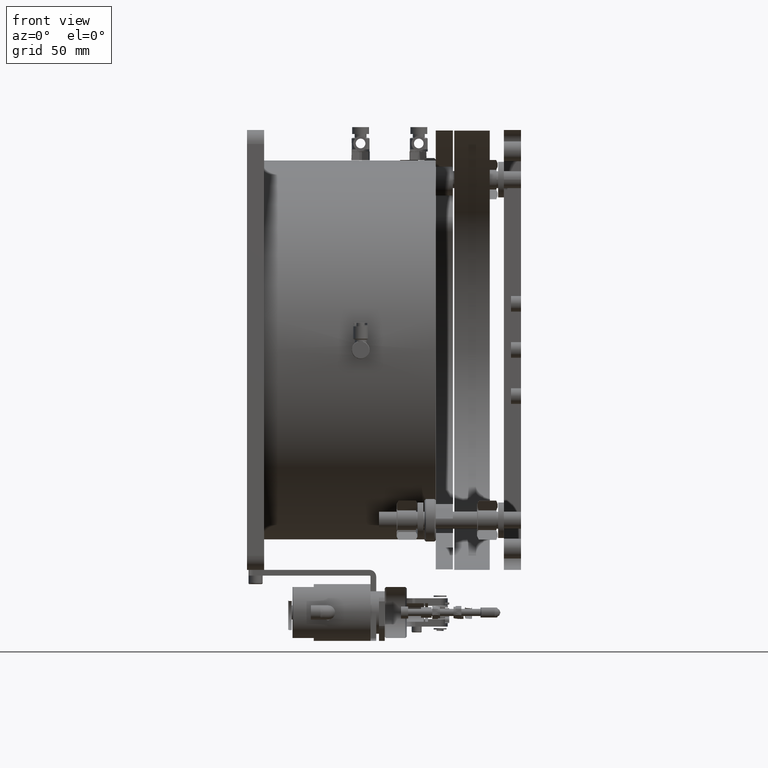
[diagram: clean part render]
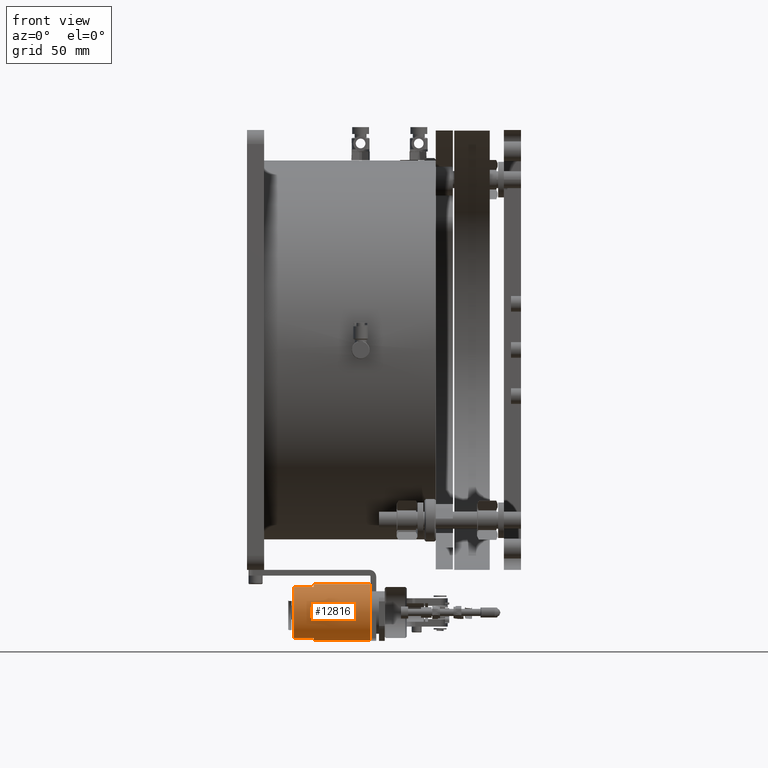
[diagram: same view with one face highlighted and labeled with its STEP entity id]
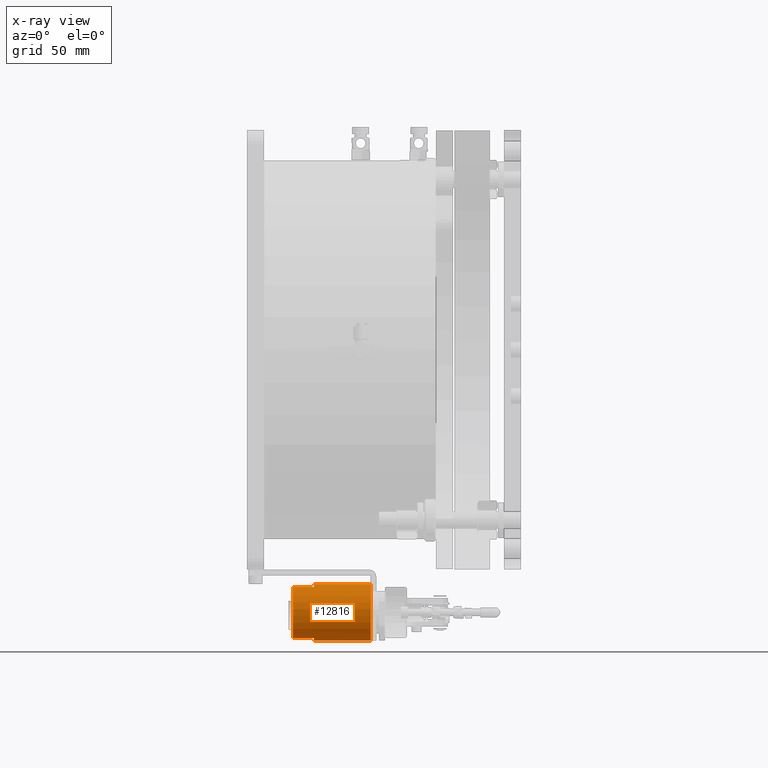
[diagram: x-ray of the same camera — body ghosted, the highlighted face saturated]
A machine part, front view. The second image highlights one B-rep face of the part: STEP entity #12816.
The next image is the same camera in x-ray: the body ghosted, the highlighted face saturated — about 2% of this face is hidden behind the body in this view.
In plain terms, the highlighted cylindrical surface (bore or boss wall) has radius 20 mm, axis along (1, -0, 0).
Its self-contained STEP definition (entity closure, byte-faithful):
#253 = CARTESIAN_POINT ( 'NONE',  ( 455.3911129078834392, -14.33325410461196014, 420.8144035397726839 ) ) ;
#330 = CARTESIAN_POINT ( 'NONE',  ( 440.4301042306548766, -53.95488104123893436, 424.1556735825731721 ) ) ;
#372 = EDGE_LOOP ( 'NONE', ( #5835, #21788 ) ) ;
#475 = CARTESIAN_POINT ( 'NONE',  ( 438.8624768670916296, -53.92913246582638465, 424.2835986024670092 ) ) ;
#478 = FACE_BOUND ( 'NONE', #4927, .T. ) ;
#615 = CARTESIAN_POINT ( 'NONE',  ( 443.2894709985730515, -54.31217394382193220, 421.3248581650288997 ) ) ;
#688 = B_SPLINE_CURVE_WITH_KNOTS ( 'NONE', 3,
 ( #26593, #6829, #2415, #4035, #11096, #13019, #28810, #1820, #13172, #22018, #15675, #13604, #22452, #10805, #27032, #20103, #1966, #13458, #10947, #19661, #9036, #18038 ),
 .UNSPECIFIED., .F., .F.,
 ( 4, 2, 2, 2, 2, 2, 2, 2, 2, 2, 4 ),
 ( 0.000000000000000000, 0.1249999999999922284, 0.2499999999999844569, 0.3124999999999805711, 0.3749999999999766853, 0.4999999999999739098, 0.5624999999999790168, 0.6249999999999841238, 0.7499999999999894529, 0.8749999999999947820, 1.000000000000000000 ),
 .UNSPECIFIED. ) ;
#808 = CARTESIAN_POINT ( 'NONE',  ( 422.3670067632326663, -14.63908213473006370, 423.7737086033929472 ) ) ;
#1052 = ORIENTED_EDGE ( 'NONE', *, *, #10877, .T. ) ;
#1062 = DIRECTION ( 'NONE',  ( 2.775557561562888984E-15, 0.000000000000000000, -1.000000000000000000 ) ) ;
#1096 = CARTESIAN_POINT ( 'NONE',  ( 421.9343673388141269, -14.58739845031549542, 423.4840502780008933 ) ) ;
#1430 = LINE ( 'NONE', #26187, #17414 ) ;
#1434 = CARTESIAN_POINT ( 'NONE',  ( 441.3975625812839212, -54.03029852921539344, 416.8123973540816110 ) ) ;
#1557 = VECTOR ( 'NONE', #23351, 1000.000000000000000 ) ;
#1604 = CARTESIAN_POINT ( 'NONE',  ( 450.3509481309974944, -14.71585787857609873, 416.3846060713249813 ) ) ;
#1668 = DIRECTION ( 'NONE',  ( 2.775557561562888984E-15, 0.000000000000000000, -1.000000000000000000 ) ) ;
#1820 = CARTESIAN_POINT ( 'NONE',  ( 422.3855758570774128, -14.63630028511637349, 416.8118920820127755 ) ) ;
#1966 = CARTESIAN_POINT ( 'NONE',  ( 426.8444667430294999, -14.58783265469587320, 417.0800874761501973 ) ) ;
#2005 = CARTESIAN_POINT ( 'NONE',  ( 438.1017263632086838, -53.97004156265929709, 416.4877248907823741 ) ) ;
#2015 = CARTESIAN_POINT ( 'NONE',  ( 451.9191749813496699, -14.73739194429638211, 424.2836779703733328 ) ) ;
#2164 = CARTESIAN_POINT ( 'NONE',  ( 447.4927345938052099, -14.35432990308941292, 421.3247542449874459 ) ) ;
#2175 = VERTEX_POINT ( 'NONE', #22513 ) ;
#2281 = EDGE_CURVE ( 'NONE', #6891, #13982, #14311, .T. ) ;
#2415 = CARTESIAN_POINT ( 'NONE',  ( 420.4933118859208321, -14.35443992623689802, 419.2401788119665298 ) ) ;
#2631 = ORIENTED_EDGE ( 'NONE', *, *, #16024, .T. ) ;
#2719 = CARTESIAN_POINT ( 'NONE',  ( 427.5946126244185734, -14.48067864694257878, 422.7367146838265057 ) ) ;
#2830 = FACE_BOUND ( 'NONE', #5687, .T. ) ;
#3102 = ORIENTED_EDGE ( 'NONE', *, *, #21226, .T. ) ;
#3122 = FACE_OUTER_BOUND ( 'NONE', #27005, .T. ) ;
#3170 = CARTESIAN_POINT ( 'NONE',  ( 414.8911129078834961, -34.33325410461196725, 420.2834046956845668 ) ) ;
#3276 = CARTESIAN_POINT ( 'NONE',  ( 428.3911129078834392, -14.33325410461196192, 420.2834046956846237 ) ) ;
#3431 = VERTEX_POINT ( 'NONE', #10551 ) ;
#3445 = EDGE_CURVE ( 'NONE', #13659, #3431, #12537, .T. ) ;
#3482 = LINE ( 'NONE', #26467, #14264 ) ;
#3569 = CIRCLE ( 'NONE', #13899, 20.00000000000001776 ) ;
#3828 = CARTESIAN_POINT ( 'NONE',  ( 455.2891568429306517, -14.35440174271069047, 419.2403420723446743 ) ) ;
#3900 = DIRECTION ( 'NONE',  ( 2.775557561562888984E-15, 0.000000000000000000, -1.000000000000000000 ) ) ;
#3986 = ORIENTED_EDGE ( 'NONE', *, *, #23240, .T. ) ;
#4035 = CARTESIAN_POINT ( 'NONE',  ( 420.8997902480427911, -14.42975204151246160, 418.2605498213314377 ) ) ;
#4231 = CIRCLE ( 'NONE', #24473, 20.00000000000001776 ) ;
#4363 = CARTESIAN_POINT ( 'NONE',  ( 436.9378166182297036, -54.07866831845382194, 417.0800440148398707 ) ) ;
#4399 = CARTESIAN_POINT ( 'NONE',  ( 455.3911129078834961, -14.33325410461196192, 419.7521461698111693 ) ) ;
#4525 = CARTESIAN_POINT ( 'NONE',  ( 447.3911129078835529, -14.33325410461196014, 420.8137580037172825 ) ) ;
#4672 = CARTESIAN_POINT ( 'NONE',  ( 454.0322037791416392, -14.56102844548665409, 423.2991903370454452 ) ) ;
#4927 = EDGE_LOOP ( 'NONE', ( #16671, #7202 ) ) ;
#5032 = CARTESIAN_POINT ( 'NONE',  ( 437.3856727848062746, -54.03020006565568423, 423.7549568070201076 ) ) ;
#5072 = CARTESIAN_POINT ( 'NONE',  ( 426.5071577041269961, -14.62386407084872353, 423.6812409005616473 ) ) ;
#5167 = B_SPLINE_CURVE_WITH_KNOTS ( 'NONE', 3,
 ( #13796, #253, #11590, #24720, #8791, #4672, #13359, #20303, #11441, #20586, #20443, #9229, #2015, #7164, #18229, #18375, #24570, #25154, #22502, #7023, #17788, #2164, #4525, #6879 ),
 .UNSPECIFIED., .F., .F.,
 ( 4, 2, 2, 2, 2, 2, 2, 2, 2, 2, 2, 4 ),
 ( 0.000000000000000000, 0.1250000000000043576, 0.2500000000000087153, 0.3125000000000154321, 0.3437500000000133227, 0.3750000000000111577, 0.5000000000000046629, 0.5625000000000015543, 0.6249999999999982236, 0.7499999999999987788, 0.8749999999999994449, 1.000000000000000000 ),
 .UNSPECIFIED. ) ;
#5177 = CIRCLE ( 'NONE', #21662, 20.00000000000001776 ) ;
#5326 = CARTESIAN_POINT ( 'NONE',  ( 441.4146219466155117, -54.02736371921497494, 423.7740555136571743 ) ) ;
#5365 = LINE ( 'NONE', #14352, #1557 ) ;
#5402 = EDGE_CURVE ( 'NONE', #17835, #21652, #3569, .T. ) ;
#5687 = EDGE_LOOP ( 'NONE', ( #1052, #13137 ) ) ;
#5835 = ORIENTED_EDGE ( 'NONE', *, *, #6869, .T. ) ;
#5951 = CARTESIAN_POINT ( 'NONE',  ( 429.3911129078833255, -25.61545621753060686, 438.2834046956846805 ) ) ;
#6027 = CARTESIAN_POINT ( 'NONE',  ( 455.3911129078834392, -14.33325410461196192, 420.2834046956846805 ) ) ;
#6091 = CARTESIAN_POINT ( 'NONE',  ( 469.3911129078834392, -34.33325410461196725, 420.2834046956847942 ) ) ;
#6136 = CARTESIAN_POINT ( 'NONE',  ( 441.8298865982197867, -54.07902027132890765, 417.1012404133761038 ) ) ;
#6273 = CARTESIAN_POINT ( 'NONE',  ( 440.4314223845797187, -53.95064949647876062, 416.3845901053058469 ) ) ;
#6420 = CARTESIAN_POINT ( 'NONE',  ( 439.1245869244698952, -53.92918587662392582, 416.2834724473347023 ) ) ;
#6829 = CARTESIAN_POINT ( 'NONE',  ( 420.3911129078835529, -14.33325410461196547, 419.7525677682430114 ) ) ;
#6869 = EDGE_CURVE ( 'NONE', #12960, #11070, #7331, .T. ) ;
#6879 = CARTESIAN_POINT ( 'NONE',  ( 447.3911129078834961, -14.33325410461196192, 420.2834046956846805 ) ) ;
#6891 = VERTEX_POINT ( 'NONE', #21298 ) ;
#6957 = CARTESIAN_POINT ( 'NONE',  ( 440.6827882938918037, -53.97019138333866550, 424.0783149018171230 ) ) ;
#7023 = CARTESIAN_POINT ( 'NONE',  ( 448.1868644628161178, -14.48053840558416105, 422.7354705667937083 ) ) ;
#7104 = CARTESIAN_POINT ( 'NONE',  ( 435.3911129078834392, -54.33325410461197436, 420.5495459708674275 ) ) ;
#7126 = ORIENTED_EDGE ( 'NONE', *, *, #14194, .T. ) ;
#7164 = CARTESIAN_POINT ( 'NONE',  ( 451.1231710596675271, -14.73730801120781564, 424.2832667838031284 ) ) ;
#7202 = ORIENTED_EDGE ( 'NONE', *, *, #3445, .T. ) ;
#7280 = CARTESIAN_POINT ( 'NONE',  ( 423.0987811687791691, -14.69627338634608726, 424.0780912449686184 ) ) ;
#7331 = B_SPLINE_CURVE_WITH_KNOTS ( 'NONE', 3,
 ( #27928, #9495, #9641, #16428, #2719, #23061, #23356, #5072, #9945, #18642, #12146, #23206, #16276, #27637, #25429, #11860, #7280, #808, #1096, #18490, #10083, #20855, #28077, #27788 ),
 .UNSPECIFIED., .F., .F.,
 ( 4, 2, 2, 2, 2, 2, 2, 2, 2, 2, 2, 4 ),
 ( 0.000000000000000000, 0.1249999999999889810, 0.2499999999999779621, 0.3124999999999724665, 0.3437499999999733546, 0.3749999999999742428, 0.4999999999999898970, 0.5624999999999911182, 0.6249999999999924505, 0.7499999999999948930, 0.8749999999999974465, 1.000000000000000000 ),
 .UNSPECIFIED. ) ;
#7738 = DIRECTION ( 'NONE',  ( 1.000000000000000000, -2.859620781426167795E-30, 3.469446951953608272E-15 ) ) ;
#8245 = CARTESIAN_POINT ( 'NONE',  ( 447.4933118868534621, -14.35443992635419086, 419.2401788104409661 ) ) ;
#8345 = CARTESIAN_POINT ( 'NONE',  ( 437.3700475160887891, -54.02711523632789437, 416.7913764683987665 ) ) ;
#8532 = CARTESIAN_POINT ( 'NONE',  ( 450.8620828140788035, -14.73734680436664135, 416.2833525606448575 ) ) ;
#8791 = CARTESIAN_POINT ( 'NONE',  ( 454.5946126236824512, -14.48067864700453100, 422.7367146842601642 ) ) ;
#8792 = DIRECTION ( 'NONE',  ( 2.775557561562888984E-15, 0.000000000000000000, -1.000000000000000000 ) ) ;
#8816 = CARTESIAN_POINT ( 'NONE',  ( 454.5932977238217063, -14.48088372930239309, 417.8285523732126308 ) ) ;
#9036 = CARTESIAN_POINT ( 'NONE',  ( 428.3911129078834392, -14.33325410461196014, 419.7521461700987970 ) ) ;
#9229 = CARTESIAN_POINT ( 'NONE',  ( 452.4331621424335594, -14.71579601531355408, 424.1819554292612793 ) ) ;
#9455 = CARTESIAN_POINT ( 'NONE',  ( 442.5950738388534660, -54.18591988345252730, 422.7358847276551046 ) ) ;
#9495 = CARTESIAN_POINT ( 'NONE',  ( 428.3911129078835529, -14.33325410461196370, 420.8144035394592493 ) ) ;
#9641 = CARTESIAN_POINT ( 'NONE',  ( 428.2884749570350209, -14.35452298886053590, 421.3278501434290888 ) ) ;
#9871 = CIRCLE ( 'NONE', #27273, 20.00000000000001776 ) ;
#9904 = CARTESIAN_POINT ( 'NONE',  ( 435.9014648634193918, -54.23646174420479582, 422.3088468897188363 ) ) ;
#9945 = CARTESIAN_POINT ( 'NONE',  ( 426.3958066350789977, -14.63551891831478002, 423.7479556779281324 ) ) ;
#10083 = CARTESIAN_POINT ( 'NONE',  ( 420.8992213374929179, -14.42964968825022432, 422.3053721465700505 ) ) ;
#10243 = DIRECTION ( 'NONE',  ( 1.000000000000000000, -2.859620781426167795E-30, 3.469446951953608272E-15 ) ) ;
#10393 = CARTESIAN_POINT ( 'NONE',  ( 420.3911129078834392, -14.33325410461196192, 420.2834046956846237 ) ) ;
#10448 = CARTESIAN_POINT ( 'NONE',  ( 453.4119551015412526, -14.63942053553780376, 416.7912201279627311 ) ) ;
#10551 = CARTESIAN_POINT ( 'NONE',  ( 435.3911129078834392, -54.33325410461196725, 420.2834046956846805 ) ) ;
#10696 = CARTESIAN_POINT ( 'NONE',  ( 435.9009484357874271, -54.23654874189062980, 418.2582116007785089 ) ) ;
#10805 = CARTESIAN_POINT ( 'NONE',  ( 425.4278398841624380, -14.71174262417785883, 416.4105534133029778 ) ) ;
#10877 = EDGE_CURVE ( 'NONE', #13982, #6891, #5167, .T. ) ;
#10947 = CARTESIAN_POINT ( 'NONE',  ( 427.8813325831196721, -14.42994956429343212, 418.2583146457174621 ) ) ;
#11024 = CARTESIAN_POINT ( 'NONE',  ( 447.3911129078834961, -14.33325410461196192, 420.2834046956846805 ) ) ;
#11070 = VERTEX_POINT ( 'NONE', #10393 ) ;
#11093 = LINE ( 'NONE', #22448, #15230 ) ;
#11096 = CARTESIAN_POINT ( 'NONE',  ( 421.1883392809148745, -14.48080739655285676, 417.8290112499715292 ) ) ;
#11221 = VERTEX_POINT ( 'NONE', #13186 ) ;
#11369 = DIRECTION ( 'NONE',  ( 2.775557561562888984E-15, 0.000000000000000000, -1.000000000000000000 ) ) ;
#11441 = CARTESIAN_POINT ( 'NONE',  ( 453.3958066355849610, -14.63551891826242723, 423.7479556776315235 ) ) ;
#11590 = CARTESIAN_POINT ( 'NONE',  ( 455.2884749570403073, -14.35452298888352018, 421.3278501437280283 ) ) ;
#11666 = CARTESIAN_POINT ( 'NONE',  ( 436.7521913652923899, -54.10518813998609744, 423.3010987560052172 ) ) ;
#11823 = CYLINDRICAL_SURFACE ( 'NONE', #19736, 20.00000000000001776 ) ;
#11860 = CARTESIAN_POINT ( 'NONE',  ( 423.3514831836670851, -14.71159346898493325, 424.1555034215669480 ) ) ;
#11959 = CARTESIAN_POINT ( 'NONE',  ( 435.5965005363047453, -54.29294172402088492, 421.5760348601727401 ) ) ;
#12146 = CARTESIAN_POINT ( 'NONE',  ( 426.0488839555538334, -14.66772218770029745, 423.9261460269704003 ) ) ;
#12537 = B_SPLINE_CURVE_WITH_KNOTS ( 'NONE', 3,
 ( #26484, #22054, #15127, #22202, #19554, #21774, #6136, #1434, #19417, #6273, #28557, #6420, #24559, #28846, #2005, #8345, #4363, #21912, #10696, #19697, #13349, #15266 ),
 .UNSPECIFIED., .F., .F.,
 ( 4, 2, 2, 2, 2, 2, 2, 2, 2, 2, 4 ),
 ( 0.000000000000000000, 0.1249999999999931166, 0.2499999999999862332, 0.3124999999999873435, 0.3749999999999884537, 0.4999999999999906741, 0.5624999999999917843, 0.6249999999999928946, 0.7499999999999952260, 0.8749999999999975575, 1.000000000000000000 ),
 .UNSPECIFIED. ) ;
#12816 = ADVANCED_FACE ( 'NONE', ( #14020, #2830, #3122, #478, #27600 ), #11823, .T. ) ;
#12852 = ORIENTED_EDGE ( 'NONE', *, *, #20861, .T. ) ;
#12951 = CARTESIAN_POINT ( 'NONE',  ( 447.3911129078834961, -14.33325410461196014, 419.7525677689681629 ) ) ;
#12960 = VERTEX_POINT ( 'NONE', #3276 ) ;
#13019 = CARTESIAN_POINT ( 'NONE',  ( 421.7516817039101511, -14.56125297539681007, 417.2661388444567478 ) ) ;
#13066 = VERTEX_POINT ( 'NONE', #21546 ) ;
#13095 = CARTESIAN_POINT ( 'NONE',  ( 449.6143907764734422, -14.65847699840890073, 416.6898184407191934 ) ) ;
#13120 = AXIS2_PLACEMENT_3D ( 'NONE', #24093, #10243, #3900 ) ;
#13137 = ORIENTED_EDGE ( 'NONE', *, *, #2281, .T. ) ;
#13172 = CARTESIAN_POINT ( 'NONE',  ( 422.6143907769695147, -14.65847699840912099, 416.6898184407178860 ) ) ;
#13186 = CARTESIAN_POINT ( 'NONE',  ( 414.8911129078835529, -43.05105199169336316, 402.2834046956845668 ) ) ;
#13349 = CARTESIAN_POINT ( 'NONE',  ( 435.3911129078833255, -54.33325410461196014, 419.7521163504271726 ) ) ;
#13359 = CARTESIAN_POINT ( 'NONE',  ( 453.8306411549584709, -14.58738793920350396, 423.4649381137851947 ) ) ;
#13458 = CARTESIAN_POINT ( 'NONE',  ( 427.5932977240258879, -14.48088372927324130, 417.8285523734164144 ) ) ;
#13510 = DIRECTION ( 'NONE',  ( 1.000000000000000000, -2.859620781426167795E-30, 3.469446951953608272E-15 ) ) ;
#13604 = CARTESIAN_POINT ( 'NONE',  ( 424.6570450725119485, -14.73733080717612687, 416.2834309305554257 ) ) ;
#13659 = VERTEX_POINT ( 'NONE', #22518 ) ;
#13796 = CARTESIAN_POINT ( 'NONE',  ( 455.3911129078834392, -14.33325410461196192, 420.2834046956846805 ) ) ;
#13870 = CARTESIAN_POINT ( 'NONE',  ( 435.3911129078834392, -54.33325410461196725, 420.2834046956846805 ) ) ;
#13899 = AXIS2_PLACEMENT_3D ( 'NONE', #20445, #13510, #8792 ) ;
#13982 = VERTEX_POINT ( 'NONE', #16727 ) ;
#14020 = FACE_BOUND ( 'NONE', #372, .T. ) ;
#14194 = EDGE_CURVE ( 'NONE', #2175, #2175, #4231, .T. ) ;
#14264 = VECTOR ( 'NONE', #21894, 1000.000000000000000 ) ;
#14311 = B_SPLINE_CURVE_WITH_KNOTS ( 'NONE', 3,
 ( #11024, #12951, #8245, #17376, #17670, #20029, #21951, #17229, #13095, #1604, #8532, #19885, #29025, #28880, #26673, #10448, #26387, #8816, #24452, #3828, #4399, #6027 ),
 .UNSPECIFIED., .F., .F.,
 ( 4, 2, 2, 2, 2, 2, 2, 2, 2, 2, 4 ),
 ( 0.000000000000000000, 0.1249999999999931721, 0.2499999999999863443, 0.3124999999999874545, 0.3749999999999886202, 0.4999999999999908962, 0.5624999999999920064, 0.6249999999999931166, 0.7499999999999954481, 0.8749999999999976685, 1.000000000000000000 ),
 .UNSPECIFIED. ) ;
#14352 = CARTESIAN_POINT ( 'NONE',  ( 491.8911129078833824, -43.05105199169331343, 438.2834046956849079 ) ) ;
#14543 = VERTEX_POINT ( 'NONE', #23252 ) ;
#14956 = VERTEX_POINT ( 'NONE', #21560 ) ;
#15127 = CARTESIAN_POINT ( 'NONE',  ( 443.2889695787113737, -54.31208173369771686, 419.2406015494581197 ) ) ;
#15230 = VECTOR ( 'NONE', #22305, 1000.000000000000000 ) ;
#15266 = CARTESIAN_POINT ( 'NONE',  ( 435.3911129078834392, -54.33325410461196725, 420.2834046956846805 ) ) ;
#15675 = CARTESIAN_POINT ( 'NONE',  ( 423.8620828137815124, -14.73734680436624522, 416.2833525606469038 ) ) ;
#15954 = CARTESIAN_POINT ( 'NONE',  ( 443.3911129078834392, -54.33325410461196725, 420.2834046956846805 ) ) ;
#16024 = EDGE_CURVE ( 'NONE', #13066, #19295, #23014, .T. ) ;
#16191 = ORIENTED_EDGE ( 'NONE', *, *, #16573, .T. ) ;
#16227 = CARTESIAN_POINT ( 'NONE',  ( 429.3911129078833824, -34.33325410461196725, 420.2834046956846237 ) ) ;
#16276 = CARTESIAN_POINT ( 'NONE',  ( 424.9191749815890944, -14.73739194429596466, 424.2836779703711159 ) ) ;
#16381 = CARTESIAN_POINT ( 'NONE',  ( 442.8829033613315573, -54.23684039909951338, 422.3055609429301853 ) ) ;
#16428 = CARTESIAN_POINT ( 'NONE',  ( 427.8825145155780660, -14.42973568028938480, 422.3059075069212440 ) ) ;
#16532 = ORIENTED_EDGE ( 'NONE', *, *, #5402, .T. ) ;
#16573 = EDGE_CURVE ( 'NONE', #24726, #14543, #9871, .T. ) ;
#16671 = ORIENTED_EDGE ( 'NONE', *, *, #21579, .T. ) ;
#16673 = B_SPLINE_CURVE_WITH_KNOTS ( 'NONE', 3,
 ( #13870, #7104, #23313, #25384, #11959, #9904, #20958, #11666, #23162, #5032, #18308, #20666, #475, #22868, #18748, #330, #6957, #5326, #20814, #9455, #16381, #615, #18450, #15954 ),
 .UNSPECIFIED., .F., .F.,
 ( 4, 2, 2, 2, 2, 2, 2, 2, 2, 2, 2, 4 ),
 ( 0.000000000000000000, 0.06250000000000373312, 0.1250000000000074662, 0.2500000000000199285, 0.3125000000000215938, 0.3750000000000233147, 0.5000000000000216493, 0.5625000000000208722, 0.6250000000000199840, 0.7500000000000133227, 0.8750000000000067724, 1.000000000000000000 ),
 .UNSPECIFIED. ) ;
#16727 = CARTESIAN_POINT ( 'NONE',  ( 455.3911129078834392, -14.33325410461196192, 420.2834046956846805 ) ) ;
#17229 = CARTESIAN_POINT ( 'NONE',  ( 449.3855758568526539, -14.63630028515380666, 416.8118920818002948 ) ) ;
#17376 = CARTESIAN_POINT ( 'NONE',  ( 447.8997902471101611, -14.42975204139516698, 418.2605498228573424 ) ) ;
#17414 = VECTOR ( 'NONE', #22198, 1000.000000000000000 ) ;
#17670 = CARTESIAN_POINT ( 'NONE',  ( 448.1883392812142688, -14.48080739651216575, 417.8290112502562010 ) ) ;
#17788 = CARTESIAN_POINT ( 'NONE',  ( 447.8992213374925200, -14.42964968813826410, 422.3053721451124716 ) ) ;
#17835 = VERTEX_POINT ( 'NONE', #21770 ) ;
#17967 = EDGE_CURVE ( 'NONE', #11221, #17835, #1430, .T. ) ;
#18038 = CARTESIAN_POINT ( 'NONE',  ( 428.3911129078834392, -14.33325410461196192, 420.2834046956846237 ) ) ;
#18142 = EDGE_CURVE ( 'NONE', #14956, #11221, #5177, .T. ) ;
#18229 = CARTESIAN_POINT ( 'NONE',  ( 450.8626996282791310, -14.73203415829305385, 424.2576834049253875 ) ) ;
#18308 = CARTESIAN_POINT ( 'NONE',  ( 437.6139199840282004, -54.00807110683724943, 423.8767756578938588 ) ) ;
#18375 = CARTESIAN_POINT ( 'NONE',  ( 450.3514831838463692, -14.71159346898463660, 424.1555034215653563 ) ) ;
#18450 = CARTESIAN_POINT ( 'NONE',  ( 443.3911129078834392, -54.33325410461196725, 420.8138130226128055 ) ) ;
#18490 = CARTESIAN_POINT ( 'NONE',  ( 421.1868644615414041, -14.48053840535423831, 422.7354705651831068 ) ) ;
#18642 = CARTESIAN_POINT ( 'NONE',  ( 426.1660579924067633, -14.65749573617024382, 423.8706623676047229 ) ) ;
#18748 = CARTESIAN_POINT ( 'NONE',  ( 439.9188990812983207, -53.93445728558146612, 424.2577655035228759 ) ) ;
#18799 = DIRECTION ( 'NONE',  ( 2.775557561562888984E-15, 0.000000000000000000, -1.000000000000000000 ) ) ;
#19009 = ORIENTED_EDGE ( 'NONE', *, *, #17967, .T. ) ;
#19295 = VERTEX_POINT ( 'NONE', #19775 ) ;
#19417 = CARTESIAN_POINT ( 'NONE',  ( 441.1684942165784378, -54.00808862392482013, 416.6901295976157371 ) ) ;
#19554 = CARTESIAN_POINT ( 'NONE',  ( 442.5955197290742831, -54.18596103872950209, 417.8310289563166862 ) ) ;
#19661 = CARTESIAN_POINT ( 'NONE',  ( 428.2891568429307654, -14.35440174268861924, 419.2403420726316767 ) ) ;
#19697 = CARTESIAN_POINT ( 'NONE',  ( 435.4930800134642368, -54.31210409781412807, 419.2402856041582595 ) ) ;
#19736 = AXIS2_PLACEMENT_3D ( 'NONE', #23020, #23165, #1062 ) ;
#19775 = CARTESIAN_POINT ( 'NONE',  ( 414.8911129078834392, -25.61545621753061397, 438.2834046956846237 ) ) ;
#19885 = CARTESIAN_POINT ( 'NONE',  ( 451.6570450723632462, -14.73733080717587995, 416.2834309305566762 ) ) ;
#19896 = EDGE_LOOP ( 'NONE', ( #16532, #3986, #2631, #12852, #16191, #3102, #24273, #19009 ) ) ;
#20029 = CARTESIAN_POINT ( 'NONE',  ( 448.7516817037604255, -14.56125297541716712, 417.2661388443142982 ) ) ;
#20103 = CARTESIAN_POINT ( 'NONE',  ( 426.4119551017571439, -14.63942053549752487, 416.7912201281768603 ) ) ;
#20303 = CARTESIAN_POINT ( 'NONE',  ( 453.5071577046790026, -14.62386407079289619, 423.6812409002380377 ) ) ;
#20443 = CARTESIAN_POINT ( 'NONE',  ( 453.0488839554792548, -14.66772218770016423, 423.9261460269696045 ) ) ;
#20445 = CARTESIAN_POINT ( 'NONE',  ( 429.3911129078834392, -34.33325410461196725, 420.2834046956846237 ) ) ;
#20586 = CARTESIAN_POINT ( 'NONE',  ( 453.1660579927286108, -14.65749573613568124, 423.8706623674161165 ) ) ;
#20666 = CARTESIAN_POINT ( 'NONE',  ( 438.3511078592843546, -53.95063145149318018, 424.1823099013130332 ) ) ;
#20814 = CARTESIAN_POINT ( 'NONE',  ( 441.8471927463101565, -54.07902341494165199, 423.4845905973160711 ) ) ;
#20855 = CARTESIAN_POINT ( 'NONE',  ( 420.4927345938053236, -14.35432990297746869, 421.3247542435298669 ) ) ;
#20861 = EDGE_CURVE ( 'NONE', #19295, #24726, #3482, .T. ) ;
#20958 = CARTESIAN_POINT ( 'NONE',  ( 436.1891493248201641, -54.18557379983757016, 422.7387691252703803 ) ) ;
#21226 = EDGE_CURVE ( 'NONE', #14543, #14956, #5365, .T. ) ;
#21298 = CARTESIAN_POINT ( 'NONE',  ( 447.3911129078834961, -14.33325410461196192, 420.2834046956846805 ) ) ;
#21546 = CARTESIAN_POINT ( 'NONE',  ( 414.8911129078834961, -25.61545621753062463, 402.2834046956845668 ) ) ;
#21560 = CARTESIAN_POINT ( 'NONE',  ( 414.8911129078833824, -43.05105199169330632, 438.2834046956846237 ) ) ;
#21579 = EDGE_CURVE ( 'NONE', #3431, #13659, #16673, .T. ) ;
#21652 = VERTEX_POINT ( 'NONE', #24038 ) ;
#21662 = AXIS2_PLACEMENT_3D ( 'NONE', #3170, #7738, #18799 ) ;
#21770 = CARTESIAN_POINT ( 'NONE',  ( 429.3911129078834961, -43.05105199169334185, 402.2834046956846805 ) ) ;
#21774 = CARTESIAN_POINT ( 'NONE',  ( 442.0319036205423231, -54.10543594032479575, 417.2673053438300030 ) ) ;
#21788 = ORIENTED_EDGE ( 'NONE', *, *, #25555, .T. ) ;
#21869 = DIRECTION ( 'NONE',  ( -1.000000000000000000, 2.859620781426167795E-30, -3.469446951953608272E-15 ) ) ;
#21894 = DIRECTION ( 'NONE',  ( 1.000000000000000000, -2.859620781426167795E-30, 3.469446951953608272E-15 ) ) ;
#21912 = CARTESIAN_POINT ( 'NONE',  ( 436.1889769660640468, -54.18561651679783608, 417.8284894663947284 ) ) ;
#21951 = CARTESIAN_POINT ( 'NONE',  ( 448.9535728573851543, -14.58763793352368054, 417.1003194598982873 ) ) ;
#22018 = CARTESIAN_POINT ( 'NONE',  ( 423.3509481300057473, -14.71585787857573990, 416.3846060713269139 ) ) ;
#22054 = CARTESIAN_POINT ( 'NONE',  ( 443.3911129078834961, -54.33325410461197436, 419.7528563348598709 ) ) ;
#22198 = DIRECTION ( 'NONE',  ( 1.000000000000000000, -2.859620781426167795E-30, 3.469446951953608272E-15 ) ) ;
#22202 = CARTESIAN_POINT ( 'NONE',  ( 442.8830194825541753, -54.23686121595453358, 418.2616688593761864 ) ) ;
#22305 = DIRECTION ( 'NONE',  ( -1.000000000000000000, 2.859620781426167795E-30, -3.469446951953608272E-15 ) ) ;
#22448 = CARTESIAN_POINT ( 'NONE',  ( 491.8911129078834961, -25.61545621753061042, 402.2834046956848510 ) ) ;
#22452 = CARTESIAN_POINT ( 'NONE',  ( 424.9171990026726462, -14.73209237837569319, 416.3088419758142891 ) ) ;
#22502 = CARTESIAN_POINT ( 'NONE',  ( 448.9343673375392996, -14.58739845008557445, 423.4840502763904055 ) ) ;
#22513 = CARTESIAN_POINT ( 'NONE',  ( 469.3911129078834961, -34.33325410461196725, 400.2834046956847942 ) ) ;
#22518 = CARTESIAN_POINT ( 'NONE',  ( 443.3911129078834392, -54.33325410461196725, 420.2834046956846805 ) ) ;
#22868 = CARTESIAN_POINT ( 'NONE',  ( 439.6584376615495557, -53.92919199118396278, 424.2833069889231865 ) ) ;
#23014 = CIRCLE ( 'NONE', #13120, 20.00000000000001776 ) ;
#23020 = CARTESIAN_POINT ( 'NONE',  ( 491.8911129078834392, -34.33325410461196725, 420.2834046956848510 ) ) ;
#23061 = CARTESIAN_POINT ( 'NONE',  ( 427.0322037787739191, -14.56102844551763731, 423.2991903372622460 ) ) ;
#23162 = CARTESIAN_POINT ( 'NONE',  ( 436.9539599212580470, -54.07882452201702961, 423.4667681913121555 ) ) ;
#23165 = DIRECTION ( 'NONE',  ( 1.000000000000000000, -2.859620781426167795E-30, 3.469446951953608272E-15 ) ) ;
#23206 = CARTESIAN_POINT ( 'NONE',  ( 425.4331621421357568, -14.71579601531312775, 424.1819554292588350 ) ) ;
#23240 = EDGE_CURVE ( 'NONE', #21652, #13066, #11093, .T. ) ;
#23252 = CARTESIAN_POINT ( 'NONE',  ( 429.3911129078833255, -43.05105199169331343, 438.2834046956846805 ) ) ;
#23313 = CARTESIAN_POINT ( 'NONE',  ( 435.4166997748939707, -54.32794293805878283, 420.8108143161931025 ) ) ;
#23351 = DIRECTION ( 'NONE',  ( -1.000000000000000000, 2.859620781426167795E-30, -3.469446951953608272E-15 ) ) ;
#23356 = CARTESIAN_POINT ( 'NONE',  ( 426.8306411544065782, -14.58738793925578037, 423.4649381141096001 ) ) ;
#24038 = CARTESIAN_POINT ( 'NONE',  ( 429.3911129078834961, -25.61545621753062107, 402.2834046956846237 ) ) ;
#24093 = CARTESIAN_POINT ( 'NONE',  ( 414.8911129078834392, -34.33325410461196725, 420.2834046956845668 ) ) ;
#24273 = ORIENTED_EDGE ( 'NONE', *, *, #18142, .T. ) ;
#24452 = CARTESIAN_POINT ( 'NONE',  ( 454.8813325831196153, -14.42994956427137510, 418.2583146460045214 ) ) ;
#24473 = AXIS2_PLACEMENT_3D ( 'NONE', #6091, #21869, #1668 ) ;
#24559 = CARTESIAN_POINT ( 'NONE',  ( 438.8644665009234700, -53.93443139369590256, 416.3089183490476444 ) ) ;
#24570 = CARTESIAN_POINT ( 'NONE',  ( 450.0987811684038888, -14.69627338630731828, 424.0780912447622200 ) ) ;
#24720 = CARTESIAN_POINT ( 'NONE',  ( 454.8825145155729501, -14.42973568026639342, 422.3059075066224750 ) ) ;
#24726 = VERTEX_POINT ( 'NONE', #5951 ) ;
#25080 = DIRECTION ( 'NONE',  ( 1.000000000000000000, -2.859620781426167795E-30, 3.469446951953608272E-15 ) ) ;
#25154 = CARTESIAN_POINT ( 'NONE',  ( 449.3670067639824879, -14.63908213480762122, 423.7737086038060283 ) ) ;
#25384 = CARTESIAN_POINT ( 'NONE',  ( 435.5190472429359829, -54.30785080441049217, 421.3232263797083306 ) ) ;
#25429 = CARTESIAN_POINT ( 'NONE',  ( 423.8626996280996764, -14.73203415829334695, 424.2576834049268086 ) ) ;
#25555 = EDGE_CURVE ( 'NONE', #11070, #12960, #688, .T. ) ;
#26187 = CARTESIAN_POINT ( 'NONE',  ( 491.8911129078834961, -43.05105199169337027, 402.2834046956849079 ) ) ;
#26387 = CARTESIAN_POINT ( 'NONE',  ( 453.8444667432336246, -14.58783265466668055, 417.0800874763546062 ) ) ;
#26467 = CARTESIAN_POINT ( 'NONE',  ( 491.8911129078833824, -25.61545621753060686, 438.2834046956849079 ) ) ;
#26484 = CARTESIAN_POINT ( 'NONE',  ( 443.3911129078834392, -54.33325410461196725, 420.2834046956846805 ) ) ;
#26593 = CARTESIAN_POINT ( 'NONE',  ( 420.3911129078834392, -14.33325410461196192, 420.2834046956846237 ) ) ;
#26673 = CARTESIAN_POINT ( 'NONE',  ( 452.6799928953357153, -14.69650107896129398, 416.4875465535836270 ) ) ;
#27005 = EDGE_LOOP ( 'NONE', ( #7126 ) ) ;
#27032 = CARTESIAN_POINT ( 'NONE',  ( 425.6799928952277128, -14.69650107898143254, 416.4875465534762498 ) ) ;
#27273 = AXIS2_PLACEMENT_3D ( 'NONE', #16227, #25080, #11369 ) ;
#27600 = FACE_OUTER_BOUND ( 'NONE', #19896, .T. ) ;
#27637 = CARTESIAN_POINT ( 'NONE',  ( 424.1231710595480422, -14.73730801120801637, 424.2832667838040948 ) ) ;
#27788 = CARTESIAN_POINT ( 'NONE',  ( 420.3911129078834392, -14.33325410461196192, 420.2834046956846237 ) ) ;
#27928 = CARTESIAN_POINT ( 'NONE',  ( 428.3911129078834392, -14.33325410461196192, 420.2834046956846237 ) ) ;
#28077 = CARTESIAN_POINT ( 'NONE',  ( 420.3911129078834392, -14.33325410461196370, 420.8137580022554971 ) ) ;
#28557 = CARTESIAN_POINT ( 'NONE',  ( 439.9194547411499343, -53.92914457607473366, 416.2832701167752134 ) ) ;
#28810 = CARTESIAN_POINT ( 'NONE',  ( 421.9535728576094584, -14.58763793348934179, 417.1003194601111659 ) ) ;
#28846 = CARTESIAN_POINT ( 'NONE',  ( 438.3538966845252958, -53.95479196949675327, 416.4106867025182055 ) ) ;
#28880 = CARTESIAN_POINT ( 'NONE',  ( 452.4278398839393844, -14.71174262417753198, 416.4105534133048536 ) ) ;
#29025 = CARTESIAN_POINT ( 'NONE',  ( 451.9171990024497063, -14.73209237837534680, 416.3088419758161649 ) ) ;